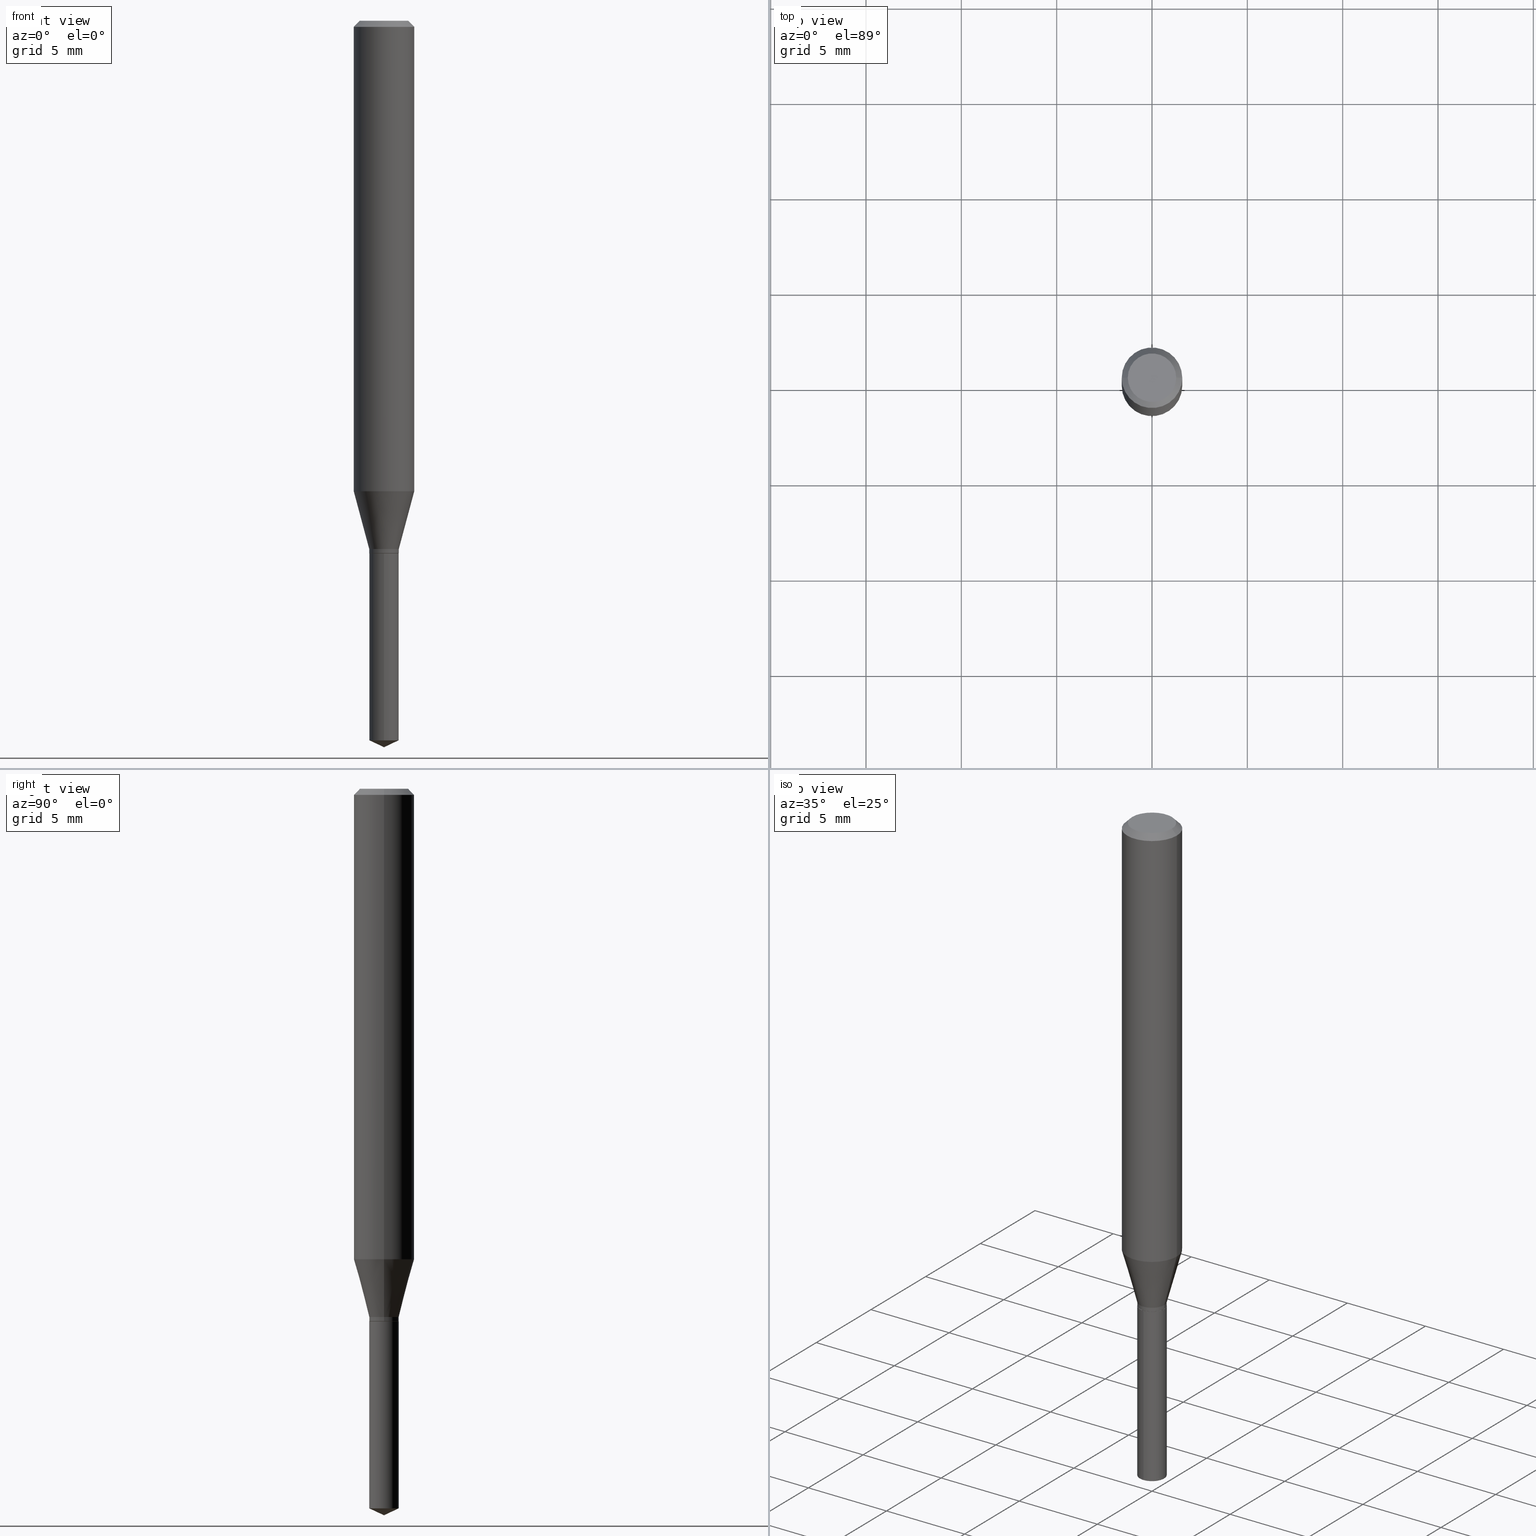
[diagram: canonical four-view strip — front | top / right | iso, engineering-drawing reading convention]
A machine part, canonical four-view strip (front | top / right | iso — engineering-drawing reading convention). The complete STEP part file that produces these views, byte-faithful:
ISO-10303-21;
HEADER;
FILE_DESCRIPTION (( 'STEP AP203' ),
    '1' );
FILE_NAME ('07172.STEP',
    '2024-04-23T19:52:52',
    ( '' ),
    ( '' ),
    'SwSTEP 2.0',
    'SolidWorks 2023',
    '' );
FILE_SCHEMA (( 'CONFIG_CONTROL_DESIGN' ));
ENDSEC;

DATA;
#1 = VECTOR ( 'NONE', #289, 39.37007874015748143 ) ;
#2 = DIRECTION ( 'NONE',  ( -2.445468806185136597E-29, 3.491481338843145583E-15, 1.000000000000000000 ) ) ;
#3 = AXIS2_PLACEMENT_3D ( 'NONE', #153, #161, #115 ) ;
#4 = ORIENTED_EDGE ( 'NONE', *, *, #213, .T. ) ;
#5 = FACE_OUTER_BOUND ( 'NONE', #14, .T. ) ;
#6 = EDGE_LOOP ( 'NONE', ( #63, #319, #139, #343 ) ) ;
#7 = EDGE_CURVE ( 'NONE', #198, #383, #295, .T. ) ;
#8 = CYLINDRICAL_SURFACE ( 'NONE', #230, 0.03049999999999999586 ) ;
#9 = ORIENTED_EDGE ( 'NONE', *, *, #224, .F. ) ;
#10 = CARTESIAN_POINT ( 'NONE',  ( -0.06250000000000005551, 4.440892098500630106E-16, -3.074334431409318916E-30 ) ) ;
#11 = AXIS2_PLACEMENT_3D ( 'NONE', #283, #354, #97 ) ;
#12 = EDGE_LOOP ( 'NONE', ( #309, #466 ) ) ;
#13 = DIRECTION ( 'NONE',  ( 0.7071067811865451302, -7.319954787623248157E-15, -0.7071067811865499042 ) ) ;
#14 = EDGE_LOOP ( 'NONE', ( #392, #4, #244, #196 ) ) ;
#15 = DATE_AND_TIME ( #346, #436 ) ;
#16 = EDGE_CURVE ( 'NONE', #54, #51, #176, .T. ) ;
#17 = ORIENTED_EDGE ( 'NONE', *, *, #168, .F. ) ;
#18 = PERSON_AND_ORGANIZATION ( #254, #45 ) ;
#19 = VECTOR ( 'NONE', #262, 39.37007874015748143 ) ;
#20 = CIRCLE ( 'NONE', #3, 0.03049999999999999586 ) ;
#21 = DIRECTION ( 'NONE',  ( -2.445399690415121530E-29, 3.491580316559632610E-15, 1.000000000000000000 ) ) ;
#22 = PERSON_AND_ORGANIZATION ( #254, #45 ) ;
#23 = EDGE_LOOP ( 'NONE', ( #80, #313, #118, #9 ) ) ;
#24 = PRODUCT_DEFINITION ( 'UNKNOWN', '', #369, #95 ) ;
#25 = PERSON_AND_ORGANIZATION ( #254, #45 ) ;
#26 = EDGE_LOOP ( 'NONE', ( #273, #167, #201, #229 ) ) ;
#27 = DIRECTION ( 'NONE',  ( -2.445399690415121530E-29, 3.491580316559632610E-15, 1.000000000000000000 ) ) ;
#28 = CLOSED_SHELL ( 'NONE', ( #480, #148, #217, #443, #83 ) ) ;
#29 = VECTOR ( 'NONE', #234, 39.37007874015748854 ) ;
#30 = DIRECTION ( 'NONE',  ( -2.445399690415121810E-29, 3.491580316559632610E-15, 1.000000000000000000 ) ) ;
#31 = CARTESIAN_POINT ( 'NONE',  ( -0.06250000000000000000, -1.273500298718897612E-15, -0.01250000000000008916 ) ) ;
#32 = EDGE_CURVE ( 'NONE', #462, #155, #320, .T. ) ;
#33 = DIRECTION ( 'NONE',  ( 1.000000000000000000, -6.982962677686264344E-15, 0.000000000000000000 ) ) ;
#34 = DIRECTION ( 'NONE',  ( 0.7071067811865232589, -2.468850131082003836E-15, 0.7071067811865715536 ) ) ;
#35 = ORIENTED_EDGE ( 'NONE', *, *, #306, .T. ) ;
#36 = FACE_OUTER_BOUND ( 'NONE', #69, .T. ) ;
#37 = AXIS2_PLACEMENT_3D ( 'NONE', #248, #183, #107 ) ;
#38 = LOCAL_TIME ( 15, 52, 52.00000000000000000, #409 ) ;
#39 = EDGE_CURVE ( 'NONE', #235, #305, #147, .T. ) ;
#40 = CYLINDRICAL_SURFACE ( 'NONE', #86, 0.03049999999999999586 ) ;
#41 = DIRECTION ( 'NONE',  ( -2.445468806185136597E-29, 3.491481338843145583E-15, 1.000000000000000000 ) ) ;
#42 = ORIENTED_EDGE ( 'NONE', *, *, #56, .T. ) ;
#43 = VECTOR ( 'NONE', #30, 39.37007874015748143 ) ;
#44 = DIRECTION ( 'NONE',  ( -2.445468806185136877E-29, 3.491481338843145188E-15, 1.000000000000000000 ) ) ;
#45 = ORGANIZATION ( 'UNSPECIFIED', 'UNSPECIFIED', '' ) ;
#46 = EDGE_CURVE ( 'NONE', #131, #88, #397, .T. ) ;
#47 = ORIENTED_EDGE ( 'NONE', *, *, #451, .T. ) ;
#48 = FACE_OUTER_BOUND ( 'NONE', #380, .T. ) ;
#49 = ORIENTED_EDGE ( 'NONE', *, *, #213, .F. ) ;
#50 = CARTESIAN_POINT ( 'NONE',  ( 0.03049999999999999586, -4.051864093727469922E-15, -1.099499999999999922 ) ) ;
#51 = VERTEX_POINT ( 'NONE', #246 ) ;
#52 = CARTESIAN_POINT ( 'NONE',  ( 0.06250000000000000000, -4.724246415962603826E-16, -0.01250000000000008916 ) ) ;
#53 = AXIS2_PLACEMENT_3D ( 'NONE', #373, #197, #114 ) ;
#54 = VERTEX_POINT ( 'NONE', #477 ) ;
#55 = UNCERTAINTY_MEASURE_WITH_UNIT (LENGTH_MEASURE( 1.000000000000000082E-05 ), #400, 'distance_accuracy_value', 'NONE');
#56 = EDGE_CURVE ( 'NONE', #268, #235, #437, .T. ) ;
#57 = EDGE_LOOP ( 'NONE', ( #122, #340, #100, #125 ) ) ;
#58 = DIRECTION ( 'NONE',  ( 1.000000000000000000, -6.982962677686269866E-15, 0.000000000000000000 ) ) ;
#59 = CLOSED_SHELL ( 'NONE', ( #456, #250, #61, #99, #367, #106, #359, #232, #185, #124, #293, #408 ) ) ;
#60 = CYLINDRICAL_SURFACE ( 'NONE', #152, 0.06250000000000005551 ) ;
#61 = ADVANCED_FACE ( 'NONE', ( #281 ), #60, .T. ) ;
#62 = CARTESIAN_POINT ( 'NONE',  ( 2.690015686803650369E-29, -3.840629472727460101E-15, -1.100000000000000089 ) ) ;
#63 = ORIENTED_EDGE ( 'NONE', *, *, #199, .F. ) ;
#64 = FACE_OUTER_BOUND ( 'NONE', #181, .T. ) ;
#65 = AXIS2_PLACEMENT_3D ( 'NONE', #253, #406, #444 ) ;
#66 = CC_DESIGN_APPROVAL ( #326, ( #24 ) ) ;
#67 = CARTESIAN_POINT ( 'NONE',  ( 3.668099535622682155E-29, -5.237370474839448718E-15, -1.500000000000000222 ) ) ;
#68 = LINE ( 'NONE', #362, #310 ) ;
#69 = EDGE_LOOP ( 'NONE', ( #157, #237, #389 ) ) ;
#70 = DIRECTION ( 'NONE',  ( -2.445468806185136597E-29, 3.491481338843145583E-15, 1.000000000000000000 ) ) ;
#71 = DIRECTION ( 'NONE',  ( -6.328713451373396200E-15, -0.9063077870366522681, 0.4226182617406940567 ) ) ;
#72 = DIRECTION ( 'NONE',  ( 2.445468806185136597E-29, -3.491481338843145583E-15, -1.000000000000000000 ) ) ;
#73 = DIRECTION ( 'NONE',  ( 2.438088387897960049E-29, -3.491481338843145188E-15, -1.000000000000000000 ) ) ;
#74 = EDGE_CURVE ( 'NONE', #385, #51, #108, .T. ) ;
#75 = VECTOR ( 'NONE', #243, 39.37007874015748854 ) ;
#76 = CIRCLE ( 'NONE', #238, 0.02999999999999999542 ) ;
#77 = CARTESIAN_POINT ( 'NONE',  ( 0.02999999999999999542, -4.050118353058048418E-15, -1.100000000000000089 ) ) ;
#78 = DIRECTION ( 'NONE',  ( -2.445468806185136877E-29, 3.491481338843145188E-15, 1.000000000000000000 ) ) ;
#79 = LINE ( 'NONE', #459, #311 ) ;
#80 = ORIENTED_EDGE ( 'NONE', *, *, #74, .T. ) ;
#81 = DATE_AND_TIME ( #488, #38 ) ;
#82 = DIRECTION ( 'NONE',  ( -2.445468806185136597E-29, 3.491481338843145583E-15, 1.000000000000000000 ) ) ;
#83 = ADVANCED_FACE ( 'NONE', ( #64 ), #208, .F. ) ;
#84 = ORIENTED_EDGE ( 'NONE', *, *, #297, .F. ) ;
#85 = ADVANCED_BREP_SHAPE_REPRESENTATION ( '07172', ( #129, #121, #321 ), #209 ) ;
#86 = AXIS2_PLACEMENT_3D ( 'NONE', #189, #294, #391 ) ;
#87 = DIRECTION ( 'NONE',  ( -2.445468806185136597E-29, 3.491481338843145583E-15, 1.000000000000000000 ) ) ;
#88 = VERTEX_POINT ( 'NONE', #31 ) ;
#89 = FACE_OUTER_BOUND ( 'NONE', #57, .T. ) ;
#90 = ORIENTED_EDGE ( 'NONE', *, *, #336, .F. ) ;
#91 = EDGE_LOOP ( 'NONE', ( #460, #347 ) ) ;
#92 = CC_DESIGN_DATE_AND_TIME_ASSIGNMENT ( #98, #192, ( #172 ) ) ;
#93 = AXIS2_PLACEMENT_3D ( 'NONE', #104, #27, #322 ) ;
#94 = EDGE_LOOP ( 'NONE', ( #264, #116, #127, #159 ) ) ;
#95 = DESIGN_CONTEXT ( 'detailed design', #249, 'design' ) ;
#96 = PERSON_AND_ORGANIZATION ( #254, #45 ) ;
#97 = DIRECTION ( 'NONE',  ( 1.000000000000000000, -6.982962677686264344E-15, 0.000000000000000000 ) ) ;
#98 = DATE_AND_TIME ( #431, #303 ) ;
#99 = ADVANCED_FACE ( 'NONE', ( #182 ), #160, .T. ) ;
#100 = ORIENTED_EDGE ( 'NONE', *, *, #162, .F. ) ;
#101 = PERSON_AND_ORGANIZATION_ROLE ( 'design_owner' ) ;
#102 = CARTESIAN_POINT ( 'NONE',  ( 1.946643104841063088E-47, -2.779290439833033990E-33, -7.960204194457798443E-19 ) ) ;
#103 = CARTESIAN_POINT ( 'NONE',  ( 3.668252923656895710E-29, -5.237152723863177100E-15, -1.500000000000000222 ) ) ;
#104 = CARTESIAN_POINT ( 'NONE',  ( 2.690015686803650369E-29, -3.840629472727460101E-15, -1.100000000000000089 ) ) ;
#105 = LINE ( 'NONE', #483, #282 ) ;
#106 = ADVANCED_FACE ( 'NONE', ( #349 ), #277, .T. ) ;
#107 = DIRECTION ( 'NONE',  ( 1.000000000000000000, -6.982962677686265922E-15, 4.875957971899673662E-29 ) ) ;
#108 = CIRCLE ( 'NONE', #426, 0.03049999999999999586 ) ;
#109 = APPROVAL_PERSON_ORGANIZATION ( #22, #326, #239 ) ;
#110 = CARTESIAN_POINT ( 'NONE',  ( -0.03049999999999999586, -3.606980253827240768E-15, -1.099499999999999922 ) ) ;
#111 = CC_DESIGN_PERSON_AND_ORGANIZATION_ASSIGNMENT ( #133, #101, ( #154 ) ) ;
#112 = DIRECTION ( 'NONE',  ( 2.445468806185136597E-29, -3.491481338843145583E-15, -1.000000000000000000 ) ) ;
#113 = CIRCLE ( 'NONE', #53, 0.04999999999999999584 ) ;
#114 = DIRECTION ( 'NONE',  ( 1.000000000000000000, -6.982962677686265922E-15, 4.875957971899673662E-29 ) ) ;
#115 = DIRECTION ( 'NONE',  ( -6.982962677686265922E-15, -1.000000000000000000, 4.478439333875842027E-15 ) ) ;
#116 = ORIENTED_EDGE ( 'NONE', *, *, #336, .T. ) ;
#117 = DIRECTION ( 'NONE',  ( -2.445468806185136597E-29, 3.491481338843145583E-15, 1.000000000000000000 ) ) ;
#118 = ORIENTED_EDGE ( 'NONE', *, *, #7, .F. ) ;
#119 = AXIS2_PLACEMENT_3D ( 'NONE', #439, #395, #411 ) ;
#120 = FACE_OUTER_BOUND ( 'NONE', #299, .T. ) ;
#121 = MANIFOLD_SOLID_BREP ( 'Body-Move/Copy2[2]', #59 ) ;
#122 = ORIENTED_EDGE ( 'NONE', *, *, #266, .T. ) ;
#123 = CARTESIAN_POINT ( 'NONE',  ( 2.690015686803650369E-29, -3.840629472727460101E-15, -1.100000000000000089 ) ) ;
#124 = ADVANCED_FACE ( 'NONE', ( #136 ), #434, .F. ) ;
#125 = ORIENTED_EDGE ( 'NONE', *, *, #306, .F. ) ;
#126 = DIRECTION ( 'NONE',  ( 0.000000000000000000, 0.000000000000000000, 1.000000000000000000 ) ) ;
#127 = ORIENTED_EDGE ( 'NONE', *, *, #386, .F. ) ;
#128 = PERSON_AND_ORGANIZATION ( #254, #45 ) ;
#129 = MANIFOLD_SOLID_BREP ( 'Body-Move/Copy2[1]', #28 ) ;
#130 = APPROVAL_PERSON_ORGANIZATION ( #256, #286, #366 ) ;
#131 = VERTEX_POINT ( 'NONE', #190 ) ;
#132 = EDGE_CURVE ( 'NONE', #235, #440, #375, .T. ) ;
#133 = PERSON_AND_ORGANIZATION ( #254, #45 ) ;
#134 = CARTESIAN_POINT ( 'NONE',  ( 0.000000000000000000, 0.000000000000000000, 0.000000000000000000 ) ) ;
#135 = LINE ( 'NONE', #52, #399 ) ;
#136 = FACE_OUTER_BOUND ( 'NONE', #91, .T. ) ;
#137 = CIRCLE ( 'NONE', #301, 0.03049999999999999586 ) ;
#138 = AXIS2_PLACEMENT_3D ( 'NONE', #420, #449, #382 ) ;
#139 = ORIENTED_EDGE ( 'NONE', *, *, #386, .T. ) ;
#140 = DIRECTION ( 'NONE',  ( -2.445468806185136597E-29, 3.491481338843145583E-15, 1.000000000000000000 ) ) ;
#141 = EDGE_CURVE ( 'NONE', #54, #385, #371, .T. ) ;
#142 = DIRECTION ( 'NONE',  ( 1.000000000000000000, -6.982962677686265922E-15, 4.876176775795935793E-29 ) ) ;
#143 = CYLINDRICAL_SURFACE ( 'NONE', #65, 0.06250000000000005551 ) ;
#144 = PERSON_AND_ORGANIZATION_ROLE ( 'creator' ) ;
#145 = CARTESIAN_POINT ( 'NONE',  ( 0.06250000000000005551, -4.364351673553921131E-16, 3.047610484872463023E-30 ) ) ;
#146 = DIRECTION ( 'NONE',  ( -2.445399690415121530E-29, 3.491580316559632610E-15, 1.000000000000000000 ) ) ;
#147 = CIRCLE ( 'NONE', #11, 0.06250000000000012490 ) ;
#148 = ADVANCED_FACE ( 'NONE', ( #36 ), #327, .T. ) ;
#149 = DIRECTION ( 'NONE',  ( -2.445468806185136597E-29, 3.491481338843145583E-15, 1.000000000000000000 ) ) ;
#150 = EDGE_LOOP ( 'NONE', ( #90, #427, #285, #458 ) ) ;
#151 = LINE ( 'NONE', #10, #418 ) ;
#152 = AXIS2_PLACEMENT_3D ( 'NONE', #134, #140, #317 ) ;
#153 = CARTESIAN_POINT ( 'NONE',  ( 2.690015686803650369E-29, -3.840629472727460101E-15, -1.100000000000000089 ) ) ;
#154 = PRODUCT ( '07172', '07172', '', ( #308 ) ) ;
#155 = VERTEX_POINT ( 'NONE', #472 ) ;
#156 = DIRECTION ( 'NONE',  ( -2.445399690415121530E-29, 3.491580316559632610E-15, 1.000000000000000000 ) ) ;
#157 = ORIENTED_EDGE ( 'NONE', *, *, #141, .F. ) ;
#158 = CARTESIAN_POINT ( 'NONE',  ( 2.667517373786747418E-29, -3.808507844410103647E-15, -1.090799999999999992 ) ) ;
#159 = ORIENTED_EDGE ( 'NONE', *, *, #132, .F. ) ;
#160 = CONICAL_SURFACE ( 'NONE', #274, 0.03049999999999999586, 0.2617993877991499629 ) ;
#161 = DIRECTION ( 'NONE',  ( -2.445399690415121530E-29, 3.491580316559632610E-15, 1.000000000000000000 ) ) ;
#162 = EDGE_CURVE ( 'NONE', #268, #338, #377, .T. ) ;
#163 = ORIENTED_EDGE ( 'NONE', *, *, #266, .F. ) ;
#164 = COORDINATED_UNIVERSAL_TIME_OFFSET ( 5, 0, .BEHIND. ) ;
#165 = ORIENTED_EDGE ( 'NONE', *, *, #451, .F. ) ;
#166 = APPROVAL_DATE_TIME ( #15, #421 ) ;
#167 = ORIENTED_EDGE ( 'NONE', *, *, #315, .F. ) ;
#168 = EDGE_CURVE ( 'NONE', #233, #338, #105, .T. ) ;
#169 = AXIS2_PLACEMENT_3D ( 'NONE', #332, #112, #361 ) ;
#170 = PERSON_AND_ORGANIZATION_ROLE ( 'classification_officer' ) ;
#171 = CC_DESIGN_APPROVAL ( #286, ( #172 ) ) ;
#172 = SECURITY_CLASSIFICATION ( '', '', #348 ) ;
#173 = DIRECTION ( 'NONE',  ( -0.7071067811865451302, 2.468850131082231817E-15, -0.7071067811865499042 ) ) ;
#174 = COORDINATED_UNIVERSAL_TIME_OFFSET ( 5, 0, .BEHIND. ) ;
#175 = ORIENTED_EDGE ( 'NONE', *, *, #7, .T. ) ;
#176 = LINE ( 'NONE', #103, #417 ) ;
#177 = FACE_OUTER_BOUND ( 'NONE', #12, .T. ) ;
#178 = CC_DESIGN_PERSON_AND_ORGANIZATION_ASSIGNMENT ( #18, #170, ( #172 ) ) ;
#179 = VECTOR ( 'NONE', #71, 39.37007874015748854 ) ;
#180 = AXIS2_PLACEMENT_3D ( 'NONE', #341, #304, #271 ) ;
#181 = EDGE_LOOP ( 'NONE', ( #175, #270 ) ) ;
#182 = FACE_OUTER_BOUND ( 'NONE', #227, .T. ) ;
#183 = DIRECTION ( 'NONE',  ( -2.445468806185136597E-29, 3.491481338843145583E-15, 1.000000000000000000 ) ) ;
#184 = FACE_OUTER_BOUND ( 'NONE', #6, .T. ) ;
#185 = ADVANCED_FACE ( 'NONE', ( #257 ), #342, .T. ) ;
#186 = CARTESIAN_POINT ( 'NONE',  ( 3.633396150581541585E-29, -5.187603004810727397E-15, -1.485777616426273040 ) ) ;
#187 = CARTESIAN_POINT ( 'NONE',  ( -9.260740279983036507E-28, 1.322265303911854087E-13, 37.87007874015748143 ) ) ;
#188 = LINE ( 'NONE', #258, #1 ) ;
#189 = CARTESIAN_POINT ( 'NONE',  ( 2.690015686803650369E-29, -3.840629472727460101E-15, -1.100000000000000089 ) ) ;
#190 = CARTESIAN_POINT ( 'NONE',  ( -0.04999999999999999584, 3.709698922520826725E-16, -1.592040838894077649E-18 ) ) ;
#191 = DIRECTION ( 'NONE',  ( 1.000000000000000000, -6.982962677686266711E-15, 0.000000000000000000 ) ) ;
#192 = DATE_TIME_ROLE ( 'classification_date' ) ;
#193 = AXIS2_PLACEMENT_3D ( 'NONE', #407, #72, #365 ) ;
#194 = AXIS2_PLACEMENT_3D ( 'NONE', #123, #2, #195 ) ;
#195 = DIRECTION ( 'NONE',  ( 1.000000000000000000, -6.982962677686269077E-15, 0.000000000000000000 ) ) ;
#196 = ORIENTED_EDGE ( 'NONE', *, *, #428, .F. ) ;
#197 = DIRECTION ( 'NONE',  ( -2.445468806185136597E-29, 3.491481338843145583E-15, 1.000000000000000000 ) ) ;
#198 = VERTEX_POINT ( 'NONE', #220 ) ;
#199 = EDGE_CURVE ( 'NONE', #345, #131, #259, .T. ) ;
#200 = CARTESIAN_POINT ( 'NONE',  ( 2.167155344068669628E-16, 0.03049999999999615866, -1.100000000000000089 ) ) ;
#201 = ORIENTED_EDGE ( 'NONE', *, *, #46, .T. ) ;
#202 = CONICAL_SURFACE ( 'NONE', #398, 84.42940631927602624, 1.134464013796323556 ) ;
#203 = ORIENTED_EDGE ( 'NONE', *, *, #245, .F. ) ;
#204 = COORDINATED_UNIVERSAL_TIME_OFFSET ( 5, 0, .BEHIND. ) ;
#205 = ORIENTED_EDGE ( 'NONE', *, *, #162, .T. ) ;
#206 = APPLICATION_CONTEXT ( 'configuration controlled 3d designs of mechanical parts and assemblies' ) ;
#207 = PERSON_AND_ORGANIZATION ( #254, #45 ) ;
#208 = PLANE ( 'NONE',  #448 ) ;
#209 =( GEOMETRIC_REPRESENTATION_CONTEXT ( 3 ) GLOBAL_UNCERTAINTY_ASSIGNED_CONTEXT ( ( #55 ) ) GLOBAL_UNIT_ASSIGNED_CONTEXT ( ( #400, #461, #351 ) ) REPRESENTATION_CONTEXT ( 'NONE', 'WORKASPACE' ) );
#210 = DIRECTION ( 'NONE',  ( -2.445468806185136597E-29, 3.491481338843145583E-15, 1.000000000000000000 ) ) ;
#211 = CALENDAR_DATE ( 2024, 23, 4 ) ;
#212 = CARTESIAN_POINT ( 'NONE',  ( 2.690015686803650369E-29, -3.840629472727460101E-15, -1.100000000000000089 ) ) ;
#213 = EDGE_CURVE ( 'NONE', #51, #385, #137, .T. ) ;
#214 = ORIENTED_EDGE ( 'NONE', *, *, #393, .F. ) ;
#215 = LOCAL_TIME ( 15, 52, 52.00000000000000000, #174 ) ;
#216 = DIRECTION ( 'NONE',  ( 2.445399690415121250E-29, -3.491580316559632610E-15, -1.000000000000000000 ) ) ;
#217 = ADVANCED_FACE ( 'NONE', ( #404 ), #202, .T. ) ;
#218 = ORIENTED_EDGE ( 'NONE', *, *, #16, .F. ) ;
#219 = SHAPE_DEFINITION_REPRESENTATION ( #381, #85 ) ;
#220 = CARTESIAN_POINT ( 'NONE',  ( -2.129803616694041823E-16, -0.03050000000000384001, -1.099999999999999867 ) ) ;
#221 = AXIS2_PLACEMENT_3D ( 'NONE', #187, #447, #481 ) ;
#222 = CC_DESIGN_SECURITY_CLASSIFICATION ( #172, ( #369 ) ) ;
#223 = FACE_OUTER_BOUND ( 'NONE', #23, .T. ) ;
#224 = EDGE_CURVE ( 'NONE', #385, #198, #188, .T. ) ;
#225 = DIRECTION ( 'NONE',  ( 1.000000000000000000, -6.982962677686269866E-15, 0.000000000000000000 ) ) ;
#226 = DIRECTION ( 'NONE',  ( -1.000000000000000000, 6.982962677686265922E-15, -4.876176775795935793E-29 ) ) ;
#227 = EDGE_LOOP ( 'NONE', ( #205, #402, #424, #363 ) ) ;
#228 = CARTESIAN_POINT ( 'NONE',  ( 2.688792952400557567E-29, -3.838883732058038598E-15, -1.099499999999999922 ) ) ;
#229 = ORIENTED_EDGE ( 'NONE', *, *, #261, .T. ) ;
#230 = AXIS2_PLACEMENT_3D ( 'NONE', #231, #156, #455 ) ;
#231 = CARTESIAN_POINT ( 'NONE',  ( 2.690015686803650369E-29, -3.840629472727460101E-15, -1.100000000000000089 ) ) ;
#232 = ADVANCED_FACE ( 'NONE', ( #372 ), #143, .T. ) ;
#233 = VERTEX_POINT ( 'NONE', #110 ) ;
#234 = DIRECTION ( 'NONE',  ( -0.7071067811865232589, 7.493145998870265808E-15, 0.7071067811865715536 ) ) ;
#235 = VERTEX_POINT ( 'NONE', #255 ) ;
#236 =( LENGTH_UNIT ( ) NAMED_UNIT ( * ) SI_UNIT ( $, .METRE. ) );
#237 = ORIENTED_EDGE ( 'NONE', *, *, #16, .T. ) ;
#238 = AXIS2_PLACEMENT_3D ( 'NONE', #416, #41, #414 ) ;
#239 = APPROVAL_ROLE ( '' ) ;
#240 = ORIENTED_EDGE ( 'NONE', *, *, #350, .F. ) ;
#241 = PERSON_AND_ORGANIZATION_ROLE ( 'design_supplier' ) ;
#242 = CARTESIAN_POINT ( 'NONE',  ( 3.633396150581541585E-29, -5.187603004810727397E-15, -1.485777616426273040 ) ) ;
#243 = DIRECTION ( 'NONE',  ( 0.2588190451025212391, 1.565188264969622362E-15, 0.9659258262890679791 ) ) ;
#244 = ORIENTED_EDGE ( 'NONE', *, *, #224, .T. ) ;
#245 = EDGE_CURVE ( 'NONE', #462, #454, #68, .T. ) ;
#246 = CARTESIAN_POINT ( 'NONE',  ( 2.167155344068668396E-16, 0.03049999999999481251, -1.485777616426273040 ) ) ;
#247 = CARTESIAN_POINT ( 'NONE',  ( -0.06250000000000000000, 3.927916506198520587E-16, -0.01250000000000008916 ) ) ;
#248 = CARTESIAN_POINT ( 'NONE',  ( 3.893286209682126177E-47, -5.558580879666067980E-33, -1.592040838891559689E-18 ) ) ;
#249 = APPLICATION_CONTEXT ( 'configuration controlled 3d designs of mechanical parts and assemblies' ) ;
#250 = ADVANCED_FACE ( 'NONE', ( #184 ), #388, .T. ) ;
#251 = CIRCLE ( 'NONE', #442, 0.06250000000000012490 ) ;
#252 = CIRCLE ( 'NONE', #485, 0.03049999999999999586 ) ;
#253 = CARTESIAN_POINT ( 'NONE',  ( 0.000000000000000000, 0.000000000000000000, 0.000000000000000000 ) ) ;
#254 = PERSON ( 'UNSPECIFIED', 'UNSPECIFIED', 'UNSPECIFIED', ('UNSPECIFIED'), ('UNSPECIFIED'), ('UNSPECIFIED') ) ;
#255 = CARTESIAN_POINT ( 'NONE',  ( 0.06250000000000012490, -3.827970667757776114E-15, -0.9713743741577957058 ) ) ;
#256 = PERSON_AND_ORGANIZATION ( #254, #45 ) ;
#257 = FACE_OUTER_BOUND ( 'NONE', #26, .T. ) ;
#258 = CARTESIAN_POINT ( 'NONE',  ( -2.129803616694041823E-16, -0.03050000000000384001, -1.099999999999999867 ) ) ;
#259 = CIRCLE ( 'NONE', #37, 0.04999999999999999584 ) ;
#260 = APPROVAL_PERSON_ORGANIZATION ( #25, #421, #464 ) ;
#261 = EDGE_CURVE ( 'NONE', #88, #440, #405, .T. ) ;
#262 = DIRECTION ( 'NONE',  ( -2.445468806185136877E-29, 3.491481338843145188E-15, 1.000000000000000000 ) ) ;
#263 = CYLINDRICAL_SURFACE ( 'NONE', #138, 0.03049999999999999586 ) ;
#264 = ORIENTED_EDGE ( 'NONE', *, *, #39, .T. ) ;
#265 = DIRECTION ( 'NONE',  ( 1.000000000000000000, -6.982962677686269866E-15, 0.000000000000000000 ) ) ;
#266 = EDGE_CURVE ( 'NONE', #454, #233, #465, .T. ) ;
#267 = AXIS2_PLACEMENT_3D ( 'NONE', #410, #70, #290 ) ;
#268 = VERTEX_POINT ( 'NONE', #292 ) ;
#269 = DIRECTION ( 'NONE',  ( 1.000000000000000000, -6.982962677686269866E-15, 0.000000000000000000 ) ) ;
#270 = ORIENTED_EDGE ( 'NONE', *, *, #428, .T. ) ;
#271 = DIRECTION ( 'NONE',  ( 1.000000000000000000, -6.982962677686269077E-15, 0.000000000000000000 ) ) ;
#272 = ORIENTED_EDGE ( 'NONE', *, *, #245, .T. ) ;
#273 = ORIENTED_EDGE ( 'NONE', *, *, #490, .F. ) ;
#274 = AXIS2_PLACEMENT_3D ( 'NONE', #324, #279, #58 ) ;
#275 = CONICAL_SURFACE ( 'NONE', #194, 0.02999999999999999542, 0.7853981633974141952 ) ;
#276 = DATE_AND_TIME ( #278, #335 ) ;
#277 = CYLINDRICAL_SURFACE ( 'NONE', #475, 0.03049999999999999586 ) ;
#278 = CALENDAR_DATE ( 2024, 23, 4 ) ;
#279 = DIRECTION ( 'NONE',  ( -2.445468806185136597E-29, 3.491481338843145583E-15, 1.000000000000000000 ) ) ;
#280 = EDGE_CURVE ( 'NONE', #51, #383, #323, .T. ) ;
#281 = FACE_OUTER_BOUND ( 'NONE', #94, .T. ) ;
#282 = VECTOR ( 'NONE', #445, 39.37007874015748143 ) ;
#283 = CARTESIAN_POINT ( 'NONE',  ( 2.375465731130499033E-29, -3.391535500402383261E-15, -0.9713743741577957058 ) ) ;
#284 = DIRECTION ( 'NONE',  ( -2.438088387897960049E-29, 3.491481338843145188E-15, 1.000000000000000000 ) ) ;
#285 = ORIENTED_EDGE ( 'NONE', *, *, #132, .T. ) ;
#286 = APPROVAL ( #364, 'UNSPECIFIED' ) ;
#287 = AXIS2_PLACEMENT_3D ( 'NONE', #102, #73, #226 ) ;
#288 = CONICAL_SURFACE ( 'NONE', #180, 0.02999999999999999542, 0.7853981633974141952 ) ;
#289 = DIRECTION ( 'NONE',  ( -2.445399690415121810E-29, 3.491580316559632610E-15, 1.000000000000000000 ) ) ;
#290 = DIRECTION ( 'NONE',  ( 1.000000000000000000, -6.982962677686269866E-15, 0.000000000000000000 ) ) ;
#291 = DIRECTION ( 'NONE',  ( 1.000000000000000000, -6.982962677686266711E-15, 0.000000000000000000 ) ) ;
#292 = CARTESIAN_POINT ( 'NONE',  ( 0.03049999999999999586, -4.021488206079534971E-15, -1.090799999999999992 ) ) ;
#293 = ADVANCED_FACE ( 'NONE', ( #177 ), #478, .F. ) ;
#294 = DIRECTION ( 'NONE',  ( -2.445399690415121530E-29, 3.491580316559632610E-15, 1.000000000000000000 ) ) ;
#295 = CIRCLE ( 'NONE', #93, 0.03049999999999999586 ) ;
#296 = CARTESIAN_POINT ( 'NONE',  ( 0.04999999999999999584, -4.077247707424184705E-16, -1.592040838888913461E-18 ) ) ;
#297 = EDGE_CURVE ( 'NONE', #305, #235, #251, .T. ) ;
#298 = LINE ( 'NONE', #453, #29 ) ;
#299 = EDGE_LOOP ( 'NONE', ( #240, #302, #42, #84 ) ) ;
#300 = CARTESIAN_POINT ( 'NONE',  ( -2.129803616693947899E-16, -0.03050000000000518616, -1.485777616426273040 ) ) ;
#301 = AXIS2_PLACEMENT_3D ( 'NONE', #186, #146, #325 ) ;
#302 = ORIENTED_EDGE ( 'NONE', *, *, #393, .T. ) ;
#303 = LOCAL_TIME ( 15, 52, 52.00000000000000000, #312 ) ;
#304 = DIRECTION ( 'NONE',  ( -2.445468806185136597E-29, 3.491481338843145583E-15, 1.000000000000000000 ) ) ;
#305 = VERTEX_POINT ( 'NONE', #370 ) ;
#306 = EDGE_CURVE ( 'NONE', #454, #268, #333, .T. ) ;
#307 = ORIENTED_EDGE ( 'NONE', *, *, #413, .T. ) ;
#308 = MECHANICAL_CONTEXT ( 'NONE', #206, 'mechanical' ) ;
#309 = ORIENTED_EDGE ( 'NONE', *, *, #32, .F. ) ;
#310 = VECTOR ( 'NONE', #34, 39.37007874015748854 ) ;
#311 = VECTOR ( 'NONE', #339, 39.37007874015748854 ) ;
#312 = COORDINATED_UNIVERSAL_TIME_OFFSET ( 5, 0, .BEHIND. ) ;
#313 = ORIENTED_EDGE ( 'NONE', *, *, #280, .T. ) ;
#314 = DIMENSIONAL_EXPONENTS ( 1.000000000000000000, 0.000000000000000000, 0.000000000000000000, 0.000000000000000000, 0.000000000000000000, 0.000000000000000000, 0.000000000000000000 ) ;
#315 = EDGE_CURVE ( 'NONE', #131, #345, #113, .T. ) ;
#316 = DATE_AND_TIME ( #211, #215 ) ;
#317 = DIRECTION ( 'NONE',  ( 1.000000000000000000, -6.982962677686267499E-15, 4.876176775795936353E-29 ) ) ;
#318 = APPROVAL_STATUS ( 'not_yet_approved' ) ;
#319 = ORIENTED_EDGE ( 'NONE', *, *, #490, .T. ) ;
#320 = CIRCLE ( 'NONE', #368, 0.02999999999999999542 ) ;
#321 = AXIS2_PLACEMENT_3D ( 'NONE', #396, #126, #471 ) ;
#322 = DIRECTION ( 'NONE',  ( -6.982962677686265922E-15, -1.000000000000000000, 4.478439333875842027E-15 ) ) ;
#323 = LINE ( 'NONE', #446, #43 ) ;
#324 = CARTESIAN_POINT ( 'NONE',  ( 2.667517373786747418E-29, -3.808507844410103647E-15, -1.090799999999999992 ) ) ;
#325 = DIRECTION ( 'NONE',  ( -6.982962677686265922E-15, -1.000000000000000000, 0.000000000000000000 ) ) ;
#326 = APPROVAL ( #425, 'UNSPECIFIED' ) ;
#327 = CONICAL_SURFACE ( 'NONE', #221, 84.42940631927602624, 1.134464013796323556 ) ;
#328 = CC_DESIGN_APPROVAL ( #421, ( #369 ) ) ;
#329 = CARTESIAN_POINT ( 'NONE',  ( 3.056836007731442729E-31, -4.364351673553962300E-17, -0.01250000000000008916 ) ) ;
#330 = APPROVAL_DATE_TIME ( #81, #286 ) ;
#331 = CC_DESIGN_PERSON_AND_ORGANIZATION_ASSIGNMENT ( #128, #429, ( #369 ) ) ;
#332 = CARTESIAN_POINT ( 'NONE',  ( 3.056836007731442729E-31, -4.364351673553962300E-17, -0.01250000000000008916 ) ) ;
#333 = LINE ( 'NONE', #376, #19 ) ;
#334 = CARTESIAN_POINT ( 'NONE',  ( 2.667517373786747418E-29, -3.808507844410103647E-15, -1.090799999999999992 ) ) ;
#335 = LOCAL_TIME ( 15, 52, 52.00000000000000000, #204 ) ;
#336 = EDGE_CURVE ( 'NONE', #305, #88, #151, .T. ) ;
#337 = CARTESIAN_POINT ( 'NONE',  ( 0.06250000000000000000, -4.800786840909313294E-16, -0.01250000000000008916 ) ) ;
#338 = VERTEX_POINT ( 'NONE', #412 ) ;
#339 = DIRECTION ( 'NONE',  ( -0.2588190451025212391, 5.211531920934549464E-15, 0.9659258262890679791 ) ) ;
#340 = ORIENTED_EDGE ( 'NONE', *, *, #168, .T. ) ;
#341 = CARTESIAN_POINT ( 'NONE',  ( 2.690015686803650369E-29, -3.840629472727460101E-15, -1.100000000000000089 ) ) ;
#342 = CONICAL_SURFACE ( 'NONE', #169, 0.06250000000000000000, 0.7853981633974449483 ) ;
#343 = ORIENTED_EDGE ( 'NONE', *, *, #46, .F. ) ;
#344 = CC_DESIGN_DATE_AND_TIME_ASSIGNMENT ( #276, #353, ( #24 ) ) ;
#345 = VERTEX_POINT ( 'NONE', #296 ) ;
#346 = CALENDAR_DATE ( 2024, 23, 4 ) ;
#347 = ORIENTED_EDGE ( 'NONE', *, *, #199, .T. ) ;
#348 = SECURITY_CLASSIFICATION_LEVEL ( 'unclassified' ) ;
#349 = FACE_OUTER_BOUND ( 'NONE', #422, .T. ) ;
#350 = EDGE_CURVE ( 'NONE', #338, #305, #79, .T. ) ;
#351 =( NAMED_UNIT ( * ) SI_UNIT ( $, .STERADIAN. ) SOLID_ANGLE_UNIT ( ) );
#352 = DIRECTION ( 'NONE',  ( 1.000000000000000000, -6.982962677686267499E-15, 4.876176775795935793E-29 ) ) ;
#353 = DATE_TIME_ROLE ( 'creation_date' ) ;
#354 = DIRECTION ( 'NONE',  ( -2.445468806185136597E-29, 3.491481338843145583E-15, 1.000000000000000000 ) ) ;
#355 = ORIENTED_EDGE ( 'NONE', *, *, #32, .T. ) ;
#356 = VECTOR ( 'NONE', #173, 39.37007874015748143 ) ;
#357 = AXIS2_PLACEMENT_3D ( 'NONE', #334, #87, #225 ) ;
#358 = CARTESIAN_POINT ( 'NONE',  ( 2.375465731130499033E-29, -3.391535500402383261E-15, -0.9713743741577957058 ) ) ;
#359 = ADVANCED_FACE ( 'NONE', ( #120 ), #450, .T. ) ;
#360 = DIRECTION ( 'NONE',  ( 1.000000000000000000, -6.982962677686269077E-15, 0.000000000000000000 ) ) ;
#361 = DIRECTION ( 'NONE',  ( -1.000000000000000000, 6.982962677686266711E-15, 0.000000000000000000 ) ) ;
#362 = CARTESIAN_POINT ( 'NONE',  ( 0.02999999999999999542, -4.050118353058048418E-15, -1.100000000000000089 ) ) ;
#363 = ORIENTED_EDGE ( 'NONE', *, *, #56, .F. ) ;
#364 = APPROVAL_STATUS ( 'not_yet_approved' ) ;
#365 = DIRECTION ( 'NONE',  ( -1.000000000000000000, 6.982962677686266711E-15, 0.000000000000000000 ) ) ;
#366 = APPROVAL_ROLE ( '' ) ;
#367 = ADVANCED_FACE ( 'NONE', ( #89 ), #263, .T. ) ;
#368 = AXIS2_PLACEMENT_3D ( 'NONE', #62, #474, #360 ) ;
#369 = PRODUCT_DEFINITION_FORMATION_WITH_SPECIFIED_SOURCE ( 'ANY', '', #154, .NOT_KNOWN. ) ;
#370 = CARTESIAN_POINT ( 'NONE',  ( -0.06250000000000012490, -2.947446290552319856E-15, -0.9713743741577957058 ) ) ;
#371 = LINE ( 'NONE', #67, #179 ) ;
#372 = FACE_OUTER_BOUND ( 'NONE', #150, .T. ) ;
#373 = CARTESIAN_POINT ( 'NONE',  ( 3.893286209682126177E-47, -5.558580879666067980E-33, -1.592040838891559689E-18 ) ) ;
#374 = EDGE_CURVE ( 'NONE', #155, #462, #76, .T. ) ;
#375 = LINE ( 'NONE', #145, #435 ) ;
#376 = CARTESIAN_POINT ( 'NONE',  ( 0.03049999999999999586, -2.129803616694311268E-16, 1.487233916617760256E-30 ) ) ;
#377 = CIRCLE ( 'NONE', #119, 0.03049999999999999586 ) ;
#378 = CIRCLE ( 'NONE', #357, 0.03049999999999999586 ) ;
#379 = CIRCLE ( 'NONE', #390, 0.06250000000000000000 ) ;
#380 = EDGE_LOOP ( 'NONE', ( #165, #394, #272, #430 ) ) ;
#381 = PRODUCT_DEFINITION_SHAPE ( 'NONE', 'NONE',  #24 ) ;
#382 = DIRECTION ( 'NONE',  ( 1.000000000000000000, -6.982962677686267499E-15, 4.876176775795935793E-29 ) ) ;
#383 = VERTEX_POINT ( 'NONE', #200 ) ;
#384 = FACE_OUTER_BOUND ( 'NONE', #487, .T. ) ;
#385 = VERTEX_POINT ( 'NONE', #300 ) ;
#386 = EDGE_CURVE ( 'NONE', #440, #88, #379, .T. ) ;
#387 = LENGTH_MEASURE_WITH_UNIT ( LENGTH_MEASURE( 0.02539999999999999897 ), #236 );
#388 = CONICAL_SURFACE ( 'NONE', #193, 0.06250000000000000000, 0.7853981633974449483 ) ;
#389 = ORIENTED_EDGE ( 'NONE', *, *, #74, .F. ) ;
#390 = AXIS2_PLACEMENT_3D ( 'NONE', #489, #452, #191 ) ;
#391 = DIRECTION ( 'NONE',  ( -6.982962677686265922E-15, -1.000000000000000000, 4.478439333875842027E-15 ) ) ;
#392 = ORIENTED_EDGE ( 'NONE', *, *, #280, .F. ) ;
#393 = EDGE_CURVE ( 'NONE', #338, #268, #378, .T. ) ;
#394 = ORIENTED_EDGE ( 'NONE', *, *, #374, .T. ) ;
#395 = DIRECTION ( 'NONE',  ( -2.445468806185136597E-29, 3.491481338843145583E-15, 1.000000000000000000 ) ) ;
#396 = CARTESIAN_POINT ( 'NONE',  ( 0.000000000000000000, 0.000000000000000000, 0.000000000000000000 ) ) ;
#397 = LINE ( 'NONE', #247, #356 ) ;
#398 = AXIS2_PLACEMENT_3D ( 'NONE', #479, #486, #441 ) ;
#399 = VECTOR ( 'NONE', #13, 39.37007874015748143 ) ;
#400 =( CONVERSION_BASED_UNIT ( 'INCH', #387 ) LENGTH_UNIT ( ) NAMED_UNIT ( #314 ) );
#401 = DIRECTION ( 'NONE',  ( 6.439704144417051652E-15, 0.9063077870366553768, 0.4226182617406878395 ) ) ;
#402 = ORIENTED_EDGE ( 'NONE', *, *, #350, .T. ) ;
#403 = DIRECTION ( 'NONE',  ( -6.982962677686265922E-15, -1.000000000000000000, 0.000000000000000000 ) ) ;
#404 = FACE_OUTER_BOUND ( 'NONE', #419, .T. ) ;
#405 = CIRCLE ( 'NONE', #484, 0.06250000000000000000 ) ;
#406 = DIRECTION ( 'NONE',  ( -2.445468806185136597E-29, 3.491481338843145583E-15, 1.000000000000000000 ) ) ;
#407 = CARTESIAN_POINT ( 'NONE',  ( 3.056836007731442729E-31, -4.364351673553962300E-17, -0.01250000000000008916 ) ) ;
#408 = ADVANCED_FACE ( 'NONE', ( #48 ), #275, .T. ) ;
#409 = COORDINATED_UNIVERSAL_TIME_OFFSET ( 5, 0, .BEHIND. ) ;
#410 = CARTESIAN_POINT ( 'NONE',  ( 2.688792952400557567E-29, -3.838883732058038598E-15, -1.099499999999999922 ) ) ;
#411 = DIRECTION ( 'NONE',  ( 1.000000000000000000, -6.982962677686269866E-15, 0.000000000000000000 ) ) ;
#412 = CARTESIAN_POINT ( 'NONE',  ( -0.03049999999999999586, -3.606980253827240768E-15, -1.090799999999999992 ) ) ;
#413 = EDGE_CURVE ( 'NONE', #233, #454, #252, .T. ) ;
#414 = DIRECTION ( 'NONE',  ( 1.000000000000000000, -6.982962677686269077E-15, 0.000000000000000000 ) ) ;
#415 = ORIENTED_EDGE ( 'NONE', *, *, #141, .T. ) ;
#416 = CARTESIAN_POINT ( 'NONE',  ( 2.690015686803650369E-29, -3.840629472727460101E-15, -1.100000000000000089 ) ) ;
#417 = VECTOR ( 'NONE', #401, 39.37007874015748143 ) ;
#418 = VECTOR ( 'NONE', #44, 39.37007874015748143 ) ;
#419 = EDGE_LOOP ( 'NONE', ( #218, #415, #49 ) ) ;
#420 = CARTESIAN_POINT ( 'NONE',  ( 0.000000000000000000, 0.000000000000000000, 0.000000000000000000 ) ) ;
#421 = APPROVAL ( #318, 'UNSPECIFIED' ) ;
#422 = EDGE_LOOP ( 'NONE', ( #17, #307, #35, #214 ) ) ;
#423 = APPLICATION_PROTOCOL_DEFINITION ( 'international standard', 'config_control_design', 1994, #249 ) ;
#424 = ORIENTED_EDGE ( 'NONE', *, *, #39, .F. ) ;
#425 = APPROVAL_STATUS ( 'not_yet_approved' ) ;
#426 = AXIS2_PLACEMENT_3D ( 'NONE', #242, #21, #403 ) ;
#427 = ORIENTED_EDGE ( 'NONE', *, *, #297, .T. ) ;
#428 = EDGE_CURVE ( 'NONE', #383, #198, #20, .T. ) ;
#429 = PERSON_AND_ORGANIZATION_ROLE ( 'creator' ) ;
#430 = ORIENTED_EDGE ( 'NONE', *, *, #413, .F. ) ;
#431 = CALENDAR_DATE ( 2024, 23, 4 ) ;
#432 = CARTESIAN_POINT ( 'NONE',  ( 0.000000000000000000, 0.000000000000000000, 0.000000000000000000 ) ) ;
#433 = APPROVAL_DATE_TIME ( #316, #326 ) ;
#434 = PLANE ( 'NONE',  #287 ) ;
#435 = VECTOR ( 'NONE', #78, 39.37007874015748143 ) ;
#436 = LOCAL_TIME ( 15, 52, 52.00000000000000000, #164 ) ;
#437 = LINE ( 'NONE', #469, #75 ) ;
#438 = CC_DESIGN_PERSON_AND_ORGANIZATION_ASSIGNMENT ( #207, #144, ( #24 ) ) ;
#439 = CARTESIAN_POINT ( 'NONE',  ( 2.667517373786747418E-29, -3.808507844410103647E-15, -1.090799999999999992 ) ) ;
#440 = VERTEX_POINT ( 'NONE', #337 ) ;
#441 = DIRECTION ( 'NONE',  ( -6.982962677686268288E-15, -1.000000000000000000, 3.520397390770383661E-15 ) ) ;
#442 = AXIS2_PLACEMENT_3D ( 'NONE', #358, #482, #33 ) ;
#443 = ADVANCED_FACE ( 'NONE', ( #5 ), #8, .T. ) ;
#444 = DIRECTION ( 'NONE',  ( 1.000000000000000000, -6.982962677686267499E-15, 4.876176775795936353E-29 ) ) ;
#445 = DIRECTION ( 'NONE',  ( -2.445468806185136877E-29, 3.491481338843145188E-15, 1.000000000000000000 ) ) ;
#446 = CARTESIAN_POINT ( 'NONE',  ( 2.167155344068573979E-16, 0.03049999999999615519, -1.100000000000000089 ) ) ;
#447 = DIRECTION ( 'NONE',  ( -2.445399690415121530E-29, 3.491580316559632610E-15, 1.000000000000000000 ) ) ;
#448 = AXIS2_PLACEMENT_3D ( 'NONE', #212, #216, #470 ) ;
#449 = DIRECTION ( 'NONE',  ( -2.445468806185136597E-29, 3.491481338843145583E-15, 1.000000000000000000 ) ) ;
#450 = CONICAL_SURFACE ( 'NONE', #467, 0.03049999999999999586, 0.2617993877991499629 ) ;
#451 = EDGE_CURVE ( 'NONE', #155, #233, #298, .T. ) ;
#452 = DIRECTION ( 'NONE',  ( -2.445468806185136597E-29, 3.491481338843145583E-15, 1.000000000000000000 ) ) ;
#453 = CARTESIAN_POINT ( 'NONE',  ( -0.02999999999999999542, -3.627466651999429856E-15, -1.100000000000000089 ) ) ;
#454 = VERTEX_POINT ( 'NONE', #50 ) ;
#455 = DIRECTION ( 'NONE',  ( -6.982962677686265922E-15, -1.000000000000000000, 4.478439333875842027E-15 ) ) ;
#456 = ADVANCED_FACE ( 'NONE', ( #384 ), #288, .T. ) ;
#457 = AXIS2_PLACEMENT_3D ( 'NONE', #476, #284, #142 ) ;
#458 = ORIENTED_EDGE ( 'NONE', *, *, #261, .F. ) ;
#459 = CARTESIAN_POINT ( 'NONE',  ( -0.03049999999999999586, -3.591792310003273292E-15, -1.090799999999999992 ) ) ;
#460 = ORIENTED_EDGE ( 'NONE', *, *, #315, .T. ) ;
#461 =( NAMED_UNIT ( * ) PLANE_ANGLE_UNIT ( ) SI_UNIT ( $, .RADIAN. ) );
#462 = VERTEX_POINT ( 'NONE', #77 ) ;
#463 = PRODUCT_RELATED_PRODUCT_CATEGORY ( 'detail', '', ( #154 ) ) ;
#464 = APPROVAL_ROLE ( '' ) ;
#465 = CIRCLE ( 'NONE', #267, 0.03049999999999999586 ) ;
#466 = ORIENTED_EDGE ( 'NONE', *, *, #374, .F. ) ;
#467 = AXIS2_PLACEMENT_3D ( 'NONE', #158, #117, #269 ) ;
#468 = APPLICATION_PROTOCOL_DEFINITION ( 'international standard', 'config_control_design', 1994, #206 ) ;
#469 = CARTESIAN_POINT ( 'NONE',  ( 0.03049999999999999586, -4.021488206079534971E-15, -1.090799999999999992 ) ) ;
#470 = DIRECTION ( 'NONE',  ( 6.982962677686265922E-15, 1.000000000000000000, -3.491580316559632610E-15 ) ) ;
#471 = DIRECTION ( 'NONE',  ( 1.000000000000000000, 0.000000000000000000, 0.000000000000000000 ) ) ;
#472 = CARTESIAN_POINT ( 'NONE',  ( -0.02999999999999999542, -3.624817424825318655E-15, -1.100000000000000089 ) ) ;
#473 = CC_DESIGN_PERSON_AND_ORGANIZATION_ASSIGNMENT ( #96, #241, ( #369 ) ) ;
#474 = DIRECTION ( 'NONE',  ( -2.445468806185136597E-29, 3.491481338843145583E-15, 1.000000000000000000 ) ) ;
#475 = AXIS2_PLACEMENT_3D ( 'NONE', #432, #210, #352 ) ;
#476 = CARTESIAN_POINT ( 'NONE',  ( 2.690015686803650369E-29, -3.840629472727460101E-15, -1.100000000000000089 ) ) ;
#477 = CARTESIAN_POINT ( 'NONE',  ( 3.668099535622682715E-29, -5.237370474839449507E-15, -1.500000000000000222 ) ) ;
#478 = PLANE ( 'NONE',  #457 ) ;
#479 = CARTESIAN_POINT ( 'NONE',  ( -9.260740279983036507E-28, 1.322265303911854087E-13, 37.87007874015748143 ) ) ;
#480 = ADVANCED_FACE ( 'NONE', ( #223 ), #40, .T. ) ;
#481 = DIRECTION ( 'NONE',  ( -6.982962677686268288E-15, -1.000000000000000000, 3.520397390770383661E-15 ) ) ;
#482 = DIRECTION ( 'NONE',  ( -2.445468806185136597E-29, 3.491481338843145583E-15, 1.000000000000000000 ) ) ;
#483 = CARTESIAN_POINT ( 'NONE',  ( -0.03049999999999999586, 2.167155344068305273E-16, -1.500275202527746071E-30 ) ) ;
#484 = AXIS2_PLACEMENT_3D ( 'NONE', #329, #149, #291 ) ;
#485 = AXIS2_PLACEMENT_3D ( 'NONE', #228, #82, #265 ) ;
#486 = DIRECTION ( 'NONE',  ( -2.445399690415121530E-29, 3.491580316559632610E-15, 1.000000000000000000 ) ) ;
#487 = EDGE_LOOP ( 'NONE', ( #355, #47, #163, #203 ) ) ;
#488 = CALENDAR_DATE ( 2024, 23, 4 ) ;
#489 = CARTESIAN_POINT ( 'NONE',  ( 3.056836007731442729E-31, -4.364351673553962300E-17, -0.01250000000000008916 ) ) ;
#490 = EDGE_CURVE ( 'NONE', #345, #440, #135, .T. ) ;
ENDSEC;
END-ISO-10303-21;
